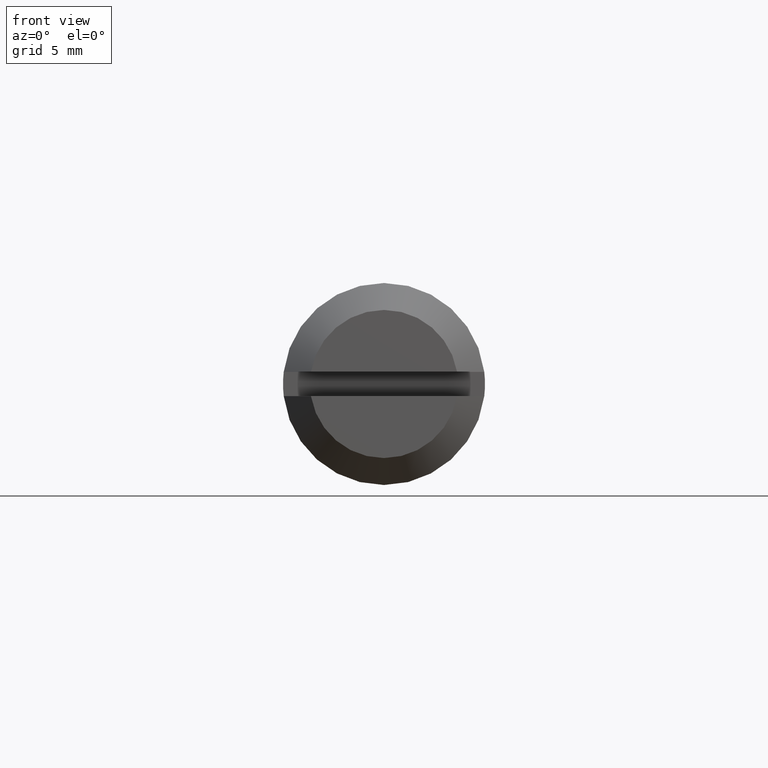
[diagram: clean part render]
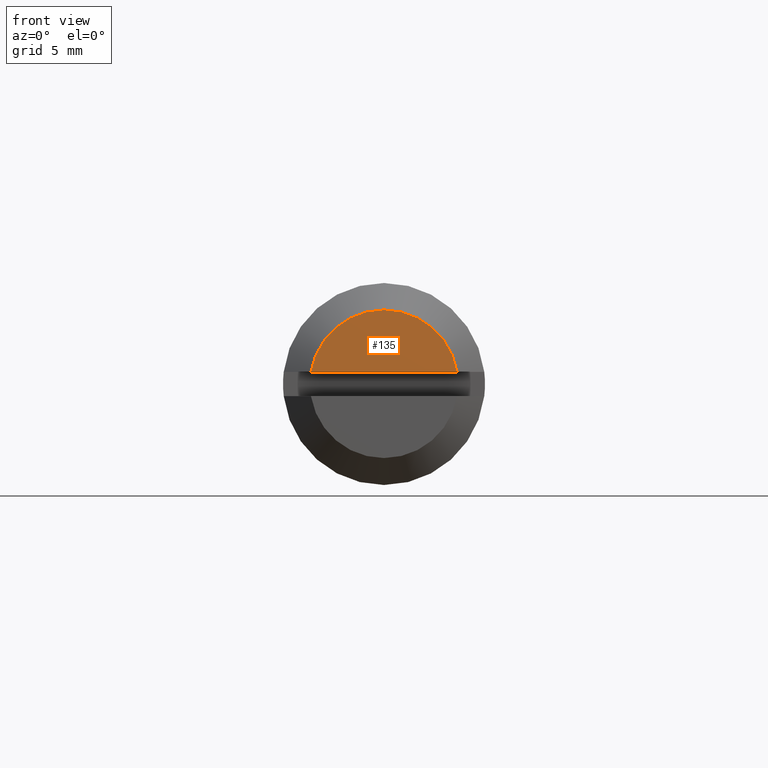
[diagram: same view with one face highlighted and labeled with its STEP entity id]
A machine part, front view. The second image highlights one B-rep face of the part: STEP entity #135.
In plain terms, the highlighted planar face has unit normal (0, 1, 0).
Its self-contained STEP definition (entity closure, byte-faithful):
#135=ADVANCED_FACE('',(#390),#389,.F.);
#389=PLANE('',#702);
#390=FACE_OUTER_BOUND('',#703,.T.);
#699=CARTESIAN_POINT('',(-9.99990000000E+00,-6.51103678380E+00,4.40000000000E-01));
#700=DIRECTION('',(1.00000000000E+00,0.00000000000E+00,0.00000000000E+00));
#701=DIRECTION('',(0.00000000000E+00,1.00000000000E+00,0.00000000000E+00));
#702=AXIS2_PLACEMENT_3D('',#699,#700,#701);
#703=EDGE_LOOP('',(#950,#951));
#950=ORIENTED_EDGE('',*,*,#1092,.T.);
#951=ORIENTED_EDGE('',*,*,#1093,.T.);
#1092=EDGE_CURVE('',#1568,#1569,#1570,.T.);
#1093=EDGE_CURVE('',#1569,#1568,#1576,.T.);
#1568=VERTEX_POINT('',#2051);
#1569=VERTEX_POINT('',#2052);
#1570=CIRCLE('',#2056,5.50000000000E+00);
#1576=LINE('',#2057,#2058);
#2051=CARTESIAN_POINT('',(-9.99990000000E+00,-5.42586398650E+00,9.00000000000E-01));
#2052=CARTESIAN_POINT('',(-9.99990000000E+00,5.42586398650E+00,9.00000000000E-01));
#2053=CARTESIAN_POINT('',(-9.99990000000E+00,0.00000000000E+00,0.00000000000E+00));
#2054=DIRECTION('',(-1.00000000000E+00,0.00000000000E+00,0.00000000000E+00));
#2055=DIRECTION('',(-0.00000000000E+00,-0.00000000000E+00,-1.00000000000E+00));
#2056=AXIS2_PLACEMENT_3D('',#2053,#2054,#2055);
#2057=CARTESIAN_POINT('',(-9.99990000000E+00,5.42586398650E+00,9.00000000000E-01));
#2058=VECTOR('',#2059,1.08517279730E+01);
#2059=DIRECTION('',(0.00000000000E+00,-1.00000000000E+00,0.00000000000E+00));